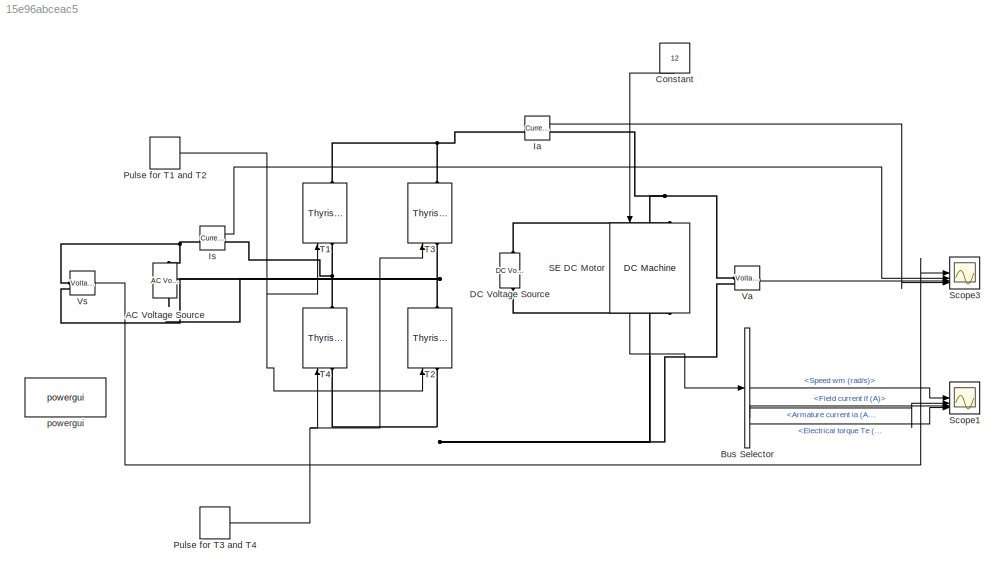
MODEL slx_15e96abceac5
KIND model
CONFIG AbsTol = auto
CONFIG EnableMultiTasking = off
CONFIG FixedStep = auto
CONFIG MaxStep = auto
CONFIG MinStep = auto
CONFIG RelTol = 1e-3
CONFIG SampleTimeConstraint = Unconstrained
CONFIG SolverName = VariableStepAuto
CONFIG StartTime = 0.0
CONFIG StopTime = 0.1
BLOCK [Reference] AC Voltage Source  REF=spsACVoltageSourceLib/AC Voltage Source
  LibrarySourceBlock = sps_lib/Sources/AC Voltage Source
  SourceBlock = spsACVoltageSourceLib/AC Voltage Source
  SourceType = AC Voltage Source
BLOCK [BusSelector] Bus Selector
  OutputSignals = Speed wm (rad/s),Armature current ia (A),Field current if (A),Electrical torque Te (n m)
BLOCK [Constant] Constant
  NameLocation = left
  Value = 12
BLOCK [Reference] DC Voltage Source  REF=spsDCVoltageSourceLib/DC Voltage Source
  LibrarySourceBlock = sps_lib/Sources/DC Voltage Source
  SourceBlock = spsDCVoltageSourceLib/DC Voltage Source
  SourceType = DC Voltage Source
BLOCK [Reference] Ia  REF=spsCurrentMeasurementLib/Current Measurement
  LibrarySourceBlock = sps_lib/Sensors and Measurements/Current Measurement
  NameLocation = top
  SourceBlock = spsCurrentMeasurementLib/Current Measurement
  SourceType = Current Measurement
  UserDataPersistent = on
BLOCK [Reference] Is  REF=spsCurrentMeasurementLib/Current Measurement
  LibrarySourceBlock = sps_lib/Sensors and Measurements/Current Measurement
  NameLocation = top
  SourceBlock = spsCurrentMeasurementLib/Current Measurement
  SourceType = Current Measurement
  UserDataPersistent = on
BLOCK [DiscretePulseGenerator] Pulse for T1 and T2
  Amplitude = 5
  NameLocation = left
  Period = 1/50
  PhaseDelay = (30/360)*0.02
  PulseType = Time based
  PulseWidth = 5
BLOCK [DiscretePulseGenerator] Pulse for T3 and T4
  Amplitude = 5
  NameLocation = left
  Period = 1/50
  PhaseDelay = (210/360)*0.02
  PulseType = Time based
  PulseWidth = 5
BLOCK [Reference] SE DC Motor  REF=spsDCMachineLib/DC Machine
  LibrarySourceBlock = sps_lib/Electrical Machines/DC Machine
  NameLocation = left
  SourceBlock = spsDCMachineLib/DC Machine
  SourceType = DC machine
BLOCK [Scope] Scope1
  ActiveDisplayYMaximum = 102.2409314413637
  ActiveDisplayYMinimum = -10.342891021289024
  Floating = off
  GraphicalSettings = {"Style":{"BackgroundColor":[0.12941176470588237,0.12941176470588237,0.12941176470588237],"AxesColor":[0.07058823529411765,0.07058823529411765,0.07058823529411765],"LabelsColor":[0.8509803921568627,0.8509803921568627,0.8509803921568627],"PreserveColors":false,"Visible":[true,true,true,true],"LineStyle":["-","-","-","-"],"LineWidth":[1.5,1.5,1.5,1.5],"BarWidth":[0.9,0.9,0.9,0.9],"LineColor":["auto"...<+3434ch>
  LayoutDimensionsString = [2,2]
  MultipleDisplayCache = [{"MaxYLimMag":102.2409314413637,"MaxYLimReal":102.2409314413637,"MinYLimMag":0,"MinYLimReal":-10.342891021289024,"PlotAsMagnitudePhase":false,"ShowGrid":true,"ShowLegend":false,"Title":"%<SignalLabel>","YLabel":""},{"MaxYLimMag":118.22023817915955,"MaxYLimReal":118.22023817915955,"MinYLimMag":0,"MinYLimReal":-13.136849129811216,"PlotAsMagnitudePhase":false,"ShowGrid":true,"ShowLegend":false,"Titl...<+487ch>
  NumInputPorts = 4
  ScopeFrameLocation = window
  WasSavedAsWebScope = on
  WindowPosition = [488.000000,143.000000,671.000000,499.000000,]
BLOCK [Scope] Scope3
  ActiveDisplayYMaximum = 274.98584860493122
  ActiveDisplayYMinimum = -274.98887093905216
  DataLoggingVariableName = ScopeData3
  Floating = off
  GraphicalSettings = {"Style":{"BackgroundColor":[0.12941176470588237,0.12941176470588237,0.12941176470588237],"AxesColor":[0.07058823529411765,0.07058823529411765,0.07058823529411765],"LabelsColor":[0.8509803921568627,0.8509803921568627,0.8509803921568627],"PreserveColors":false,"Visible":[true,true,true,true],"LineStyle":["-","-","-","-"],"LineWidth":[1.5,1.5,1.5,1.5],"BarWidth":[0.9,0.9,0.9,0.9],"LineColor":[[1,0.9...<+3590ch>
  LayoutDimensionsString = [4,1]
  MultipleDisplayCache = [{"MaxYLimMag":274.98887093905216,"MaxYLimReal":274.98584860493122,"MinYLimMag":0,"MinYLimReal":-274.98887093905216,"PlotAsMagnitudePhase":false,"ShowGrid":true,"ShowLegend":false,"Title":"%<SignalLabel>","YLabel":""},{"MaxYLimMag":131.32495619397821,"MaxYLimReal":131.3166149281505,"MinYLimMag":0,"MinYLimReal":-131.32495619397821,"PlotAsMagnitudePhase":false,"ShowGrid":true,"ShowLegend":false,"Tit...<+468ch>
  NumInputPorts = 4
  ScopeFrameLocation = window
  WasSavedAsWebScope = on
  WindowPosition = [488.000000,143.000000,671.000000,499.000000,]
BLOCK [Reference] T1  REF=spsThyristorLib/Thyristor
  LibrarySourceBlock = sps_lib/Power Electronics/Thyristor
  NameLocation = right
  SourceBlock = spsThyristorLib/Thyristor
  SourceType = Thyristor
BLOCK [Reference] T2  REF=spsThyristorLib/Thyristor
  LibrarySourceBlock = sps_lib/Power Electronics/Thyristor
  NameLocation = right
  SourceBlock = spsThyristorLib/Thyristor
  SourceType = Thyristor
BLOCK [Reference] T3  REF=spsThyristorLib/Thyristor
  LibrarySourceBlock = sps_lib/Power Electronics/Thyristor
  NameLocation = right
  SourceBlock = spsThyristorLib/Thyristor
  SourceType = Thyristor
BLOCK [Reference] T4  REF=spsThyristorLib/Thyristor
  LibrarySourceBlock = sps_lib/Power Electronics/Thyristor
  NameLocation = right
  SourceBlock = spsThyristorLib/Thyristor
  SourceType = Thyristor
BLOCK [Reference] Va  REF=spsVoltageMeasurementLib/Voltage Measurement
  LibrarySourceBlock = sps_lib/Sensors and Measurements/Voltage Measurement
  NameLocation = top
  SourceBlock = spsVoltageMeasurementLib/Voltage Measurement
  SourceType = Voltage Measurement
  UserDataPersistent = on
BLOCK [Reference] Vs  REF=spsVoltageMeasurementLib/Voltage Measurement
  LibrarySourceBlock = sps_lib/Sensors and Measurements/Voltage Measurement
  NameLocation = top
  SourceBlock = spsVoltageMeasurementLib/Voltage Measurement
  SourceType = Voltage Measurement
  UserDataPersistent = on
BLOCK [Reference] powergui  REF=sps_lib/powergui
  LibrarySourceBlock = sps_lib/powergui
  Priority = 1
  SourceBlock = sps_lib/powergui
  SourceType = PSB option menu block
LINE Bus Selector:1 -> Scope1:1
LINE Bus Selector:2 -> Scope1:2
LINE Bus Selector:3 -> Scope1:3
LINE Bus Selector:4 -> Scope1:4
LINE Constant:1 -> SE DC Motor:1
LINE Ia:1 -> Scope3:4
LINE Is:1 -> Scope3:2
NET Pulse for T1 and T2:1 -> T1:1, T2:1
NET Pulse for T3 and T4:1 -> T3:1, T4:1
LINE SE DC Motor:1 -> Bus Selector:1
LINE Va:1 -> Scope3:3
LINE Vs:1 -> Scope3:1
PNET net1: AC Voltage Source:LConn1 -- T2:RConn1 -- T3:LConn1 -- Vs:LConn2
PNET net2: AC Voltage Source:RConn1 -- Is:LConn1 -- Vs:LConn1
PLINE DC Voltage Source:LConn1 -- SE DC Motor:RConn2
PLINE DC Voltage Source:RConn1 -- SE DC Motor:LConn2
PNET net3: Ia:LConn1 -- T1:RConn1 -- T3:RConn1
PNET net4: Ia:RConn1 -- SE DC Motor:LConn1 -- Va:LConn1
PNET net5: Is:RConn1 -- T1:LConn1 -- T4:RConn1
PNET net6: SE DC Motor:RConn1 -- T2:LConn1 -- T4:LConn1 -- Va:LConn2
note: NET lines group one-source signal fan-out (src -> all destinations, sorted); 1:1 wires keep LINE; PNET lines group multi-terminal physical nets as a canonical sorted terminal list (undirected conserving connections); 2-terminal nets keep the pairwise PLINE form
